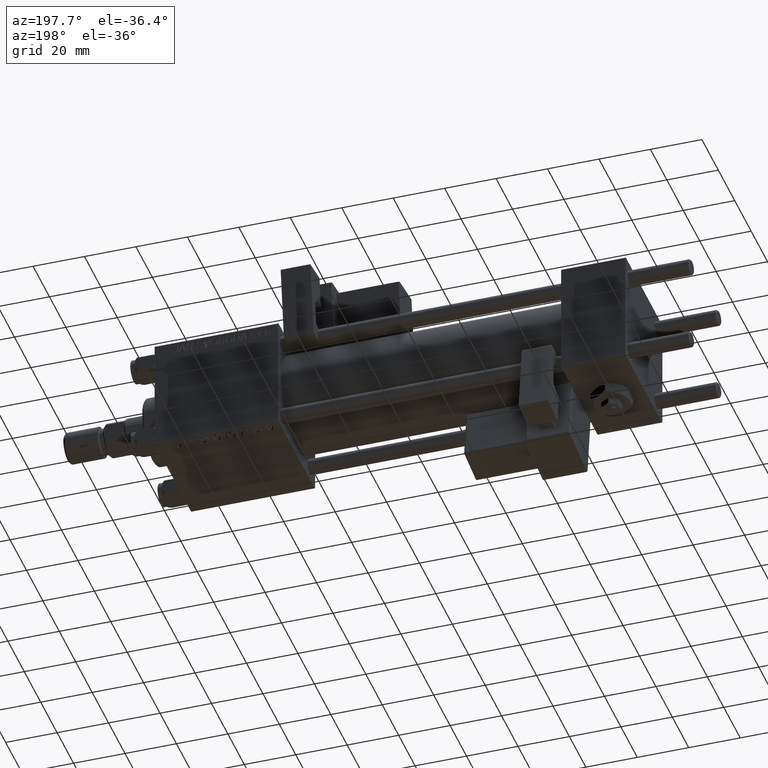
[diagram: clean part render]
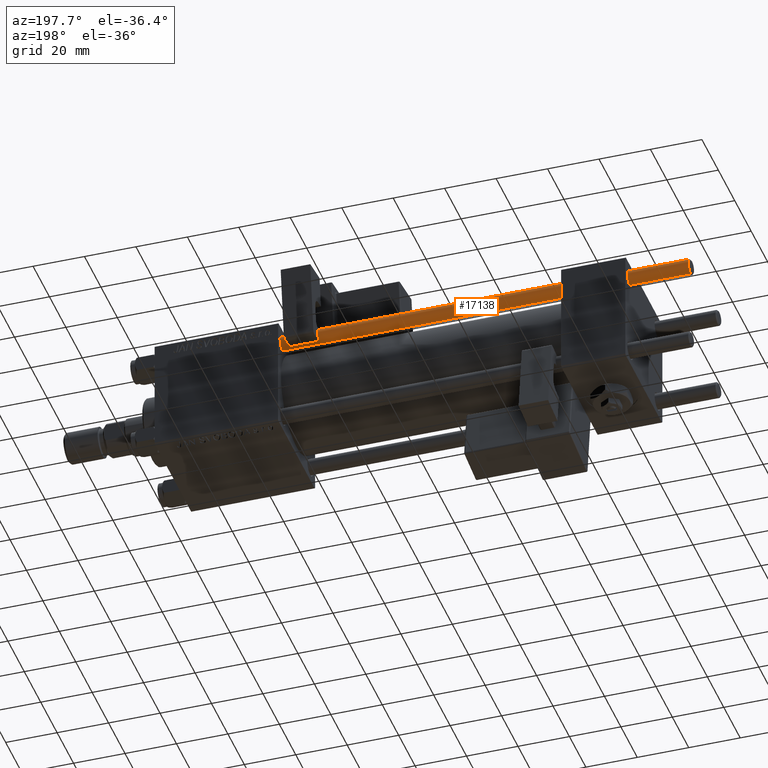
[diagram: same view with one face highlighted and labeled with its STEP entity id]
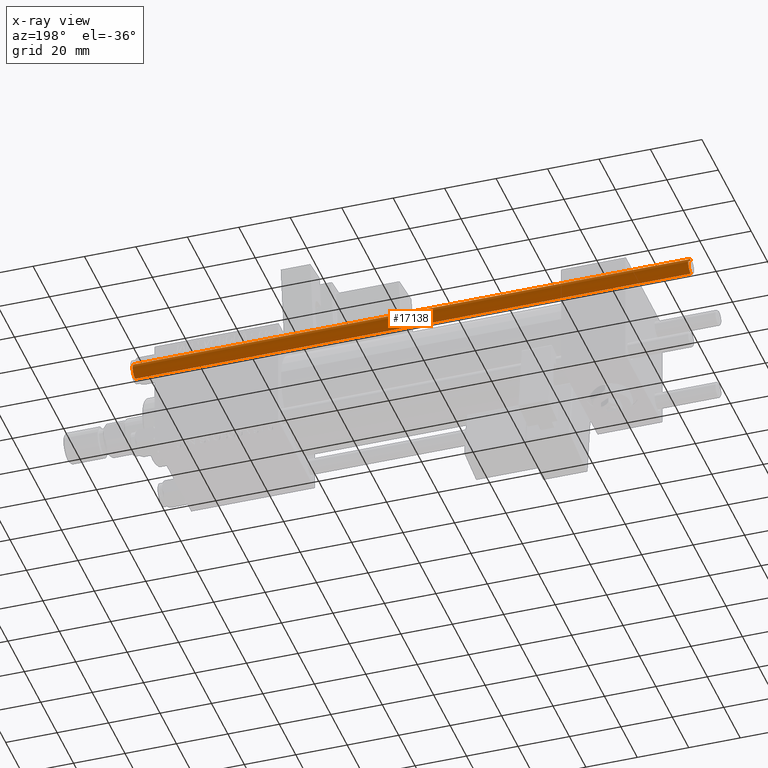
[diagram: x-ray of the same camera — body ghosted, the highlighted face saturated]
A machine part, auxiliary view. The second image highlights one B-rep face of the part: STEP entity #17138.
The next image is the same camera in x-ray: the body ghosted, the highlighted face saturated — about 0% of this face is hidden behind the body in this view.
In plain terms, the highlighted cylindrical surface (edge-blend (fillet) strip) has radius 3 mm, axis along (-1, -0, -0).
Its self-contained STEP definition (entity closure, byte-faithful):
#1662 = LINE ( 'NONE', #46999, #17056 ) ;
#1986 = FACE_OUTER_BOUND ( 'NONE', #2790, .T. ) ;
#2790 = EDGE_LOOP ( 'NONE', ( #38189, #28072, #9549, #33369 ) ) ;
#2844 = AXIS2_PLACEMENT_3D ( 'NONE', #39150, #6159, #43533 ) ;
#3213 = CARTESIAN_POINT ( 'NONE',  ( -3.000000000000000444, 0.000000000000000000, 217.0000000000000000 ) ) ;
#5278 = CYLINDRICAL_SURFACE ( 'NONE', #44395, 3.000000000000000444 ) ;
#6125 = EDGE_CURVE ( 'NONE', #13489, #34172, #14264, .T. ) ;
#6159 = DIRECTION ( 'NONE',  ( -0.000000000000000000, -0.000000000000000000, 1.000000000000000000 ) ) ;
#7402 = CARTESIAN_POINT ( 'NONE',  ( 0.000000000000000000, 0.000000000000000000, 216.5000000000000000 ) ) ;
#8254 = CARTESIAN_POINT ( 'NONE',  ( 3.000000000000000444, 3.673940397442060361E-16, 0.5000000000000559552 ) ) ;
#9549 = ORIENTED_EDGE ( 'NONE', *, *, #6125, .T. ) ;
#12414 = EDGE_CURVE ( 'NONE', #42560, #13489, #1662, .T. ) ;
#13489 = VERTEX_POINT ( 'NONE', #8254 ) ;
#14264 = CIRCLE ( 'NONE', #2844, 3.000000000000000444 ) ;
#14849 = DIRECTION ( 'NONE',  ( 0.000000000000000000, 0.000000000000000000, -1.000000000000000000 ) ) ;
#17056 = VECTOR ( 'NONE', #26970, 1000.000000000000000 ) ;
#17138 = ADVANCED_FACE ( 'NONE', ( #1986 ), #5278, .T. ) ;
#17948 = CARTESIAN_POINT ( 'NONE',  ( 0.000000000000000000, 0.000000000000000000, 217.0000000000000000 ) ) ;
#18891 = CIRCLE ( 'NONE', #35558, 3.000000000000000444 ) ;
#19285 = CARTESIAN_POINT ( 'NONE',  ( -3.000000000000000444, 0.000000000000000000, 0.5000000000000559552 ) ) ;
#20057 = DIRECTION ( 'NONE',  ( 1.000000000000000000, 0.000000000000000000, 0.000000000000000000 ) ) ;
#25002 = EDGE_CURVE ( 'NONE', #30480, #34172, #49365, .T. ) ;
#26970 = DIRECTION ( 'NONE',  ( -0.000000000000000000, -0.000000000000000000, -1.000000000000000000 ) ) ;
#28072 = ORIENTED_EDGE ( 'NONE', *, *, #12414, .T. ) ;
#30480 = VERTEX_POINT ( 'NONE', #34708 ) ;
#33369 = ORIENTED_EDGE ( 'NONE', *, *, #25002, .F. ) ;
#34172 = VERTEX_POINT ( 'NONE', #19285 ) ;
#34708 = CARTESIAN_POINT ( 'NONE',  ( -3.000000000000000444, 0.000000000000000000, 216.5000000000000000 ) ) ;
#35253 = DIRECTION ( 'NONE',  ( -0.000000000000000000, -0.000000000000000000, -1.000000000000000000 ) ) ;
#35558 = AXIS2_PLACEMENT_3D ( 'NONE', #7402, #14849, #20057 ) ;
#38189 = ORIENTED_EDGE ( 'NONE', *, *, #51870, .T. ) ;
#39150 = CARTESIAN_POINT ( 'NONE',  ( 0.000000000000000000, 0.000000000000000000, 0.5000000000000559552 ) ) ;
#41034 = VECTOR ( 'NONE', #53475, 1000.000000000000000 ) ;
#42560 = VERTEX_POINT ( 'NONE', #47048 ) ;
#43533 = DIRECTION ( 'NONE',  ( 1.000000000000000000, 0.000000000000000000, 0.000000000000000000 ) ) ;
#44395 = AXIS2_PLACEMENT_3D ( 'NONE', #17948, #35253, #51429 ) ;
#46999 = CARTESIAN_POINT ( 'NONE',  ( 3.000000000000000444, 3.673940397442060361E-16, 217.0000000000000000 ) ) ;
#47048 = CARTESIAN_POINT ( 'NONE',  ( 3.000000000000000444, 3.673940397442060361E-16, 216.5000000000000000 ) ) ;
#49365 = LINE ( 'NONE', #3213, #41034 ) ;
#51429 = DIRECTION ( 'NONE',  ( -1.000000000000000000, 0.000000000000000000, 0.000000000000000000 ) ) ;
#51870 = EDGE_CURVE ( 'NONE', #30480, #42560, #18891, .T. ) ;
#53475 = DIRECTION ( 'NONE',  ( -0.000000000000000000, -0.000000000000000000, -1.000000000000000000 ) ) ;